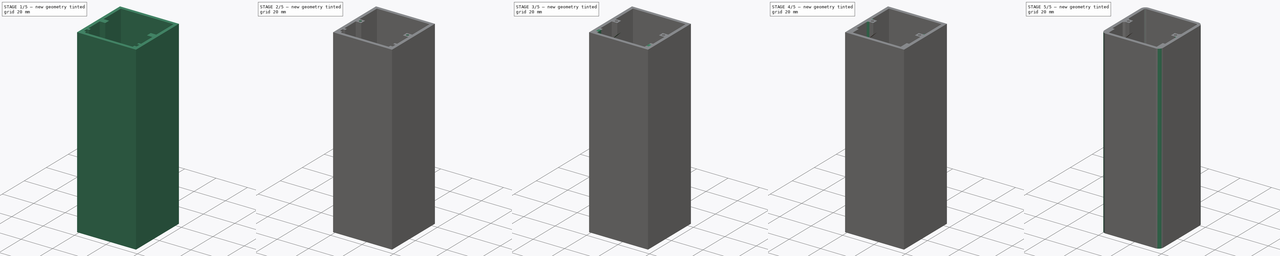
[diagram: build sequence overview — one tinted view per stage of 5, left to right]
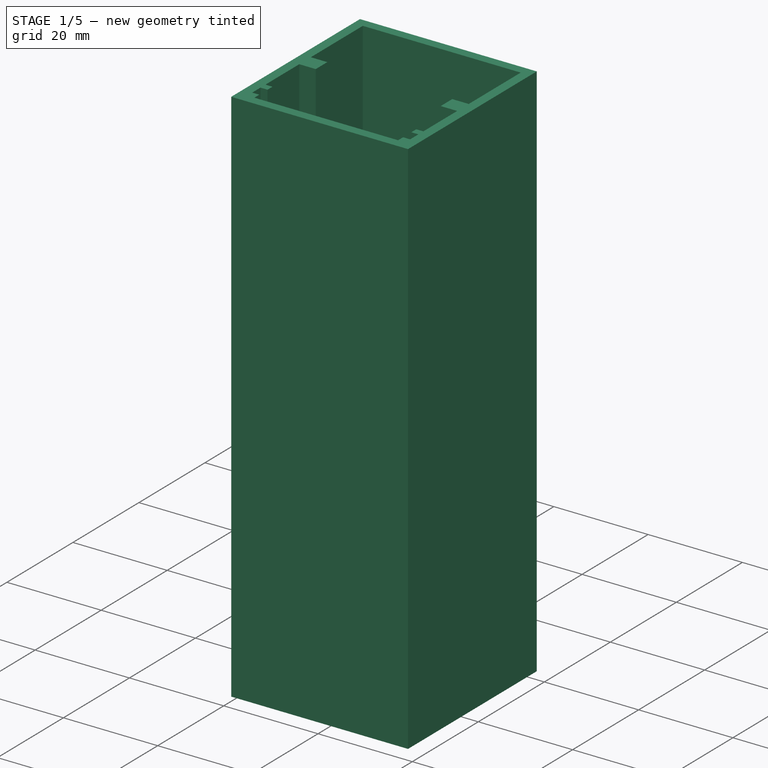
[diagram: stage 1 of 5 — iso view after this stage's code; geometry added in this stage tinted green]
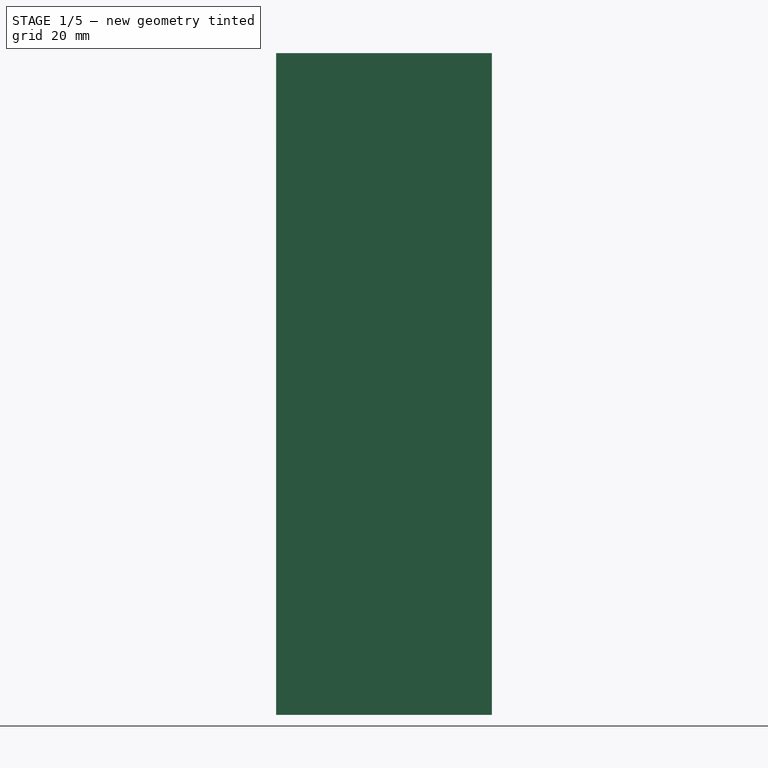
[diagram: stage 1 of 5 — front view after this stage's code; geometry added in this stage tinted green]
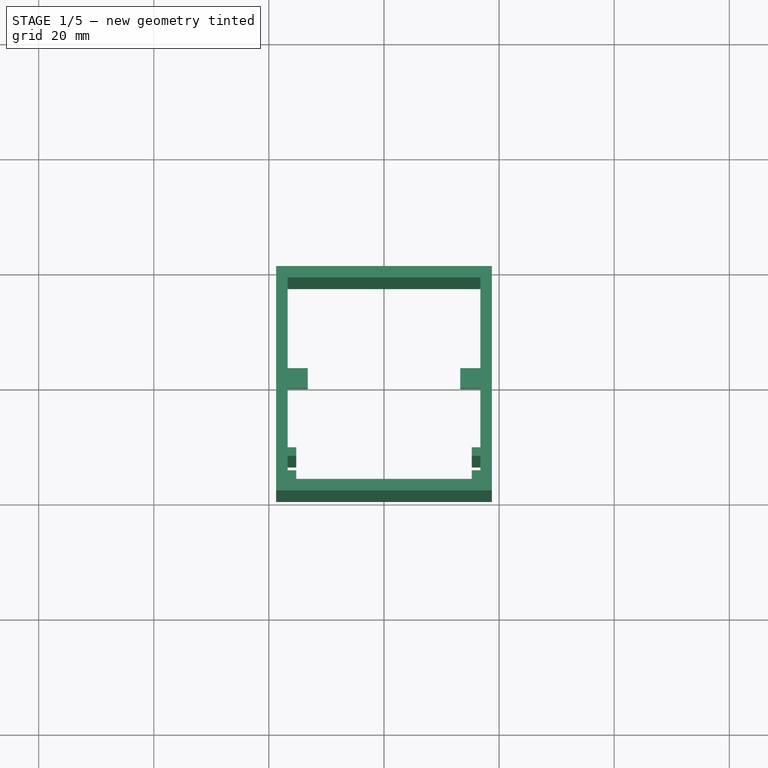
[diagram: stage 1 of 5 — top view after this stage's code; geometry added in this stage tinted green]
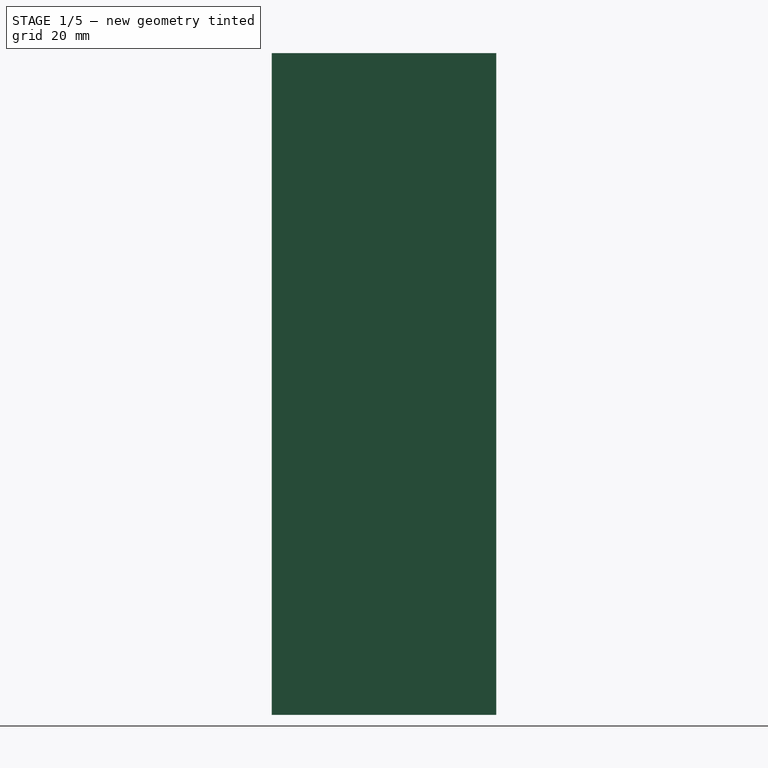
[diagram: stage 1 of 5 — right view after this stage's code; geometry added in this stage tinted green]
FCSTD DOCUMENT  (FreeCAD 0.20R29603 (Git))
Label: inline_box
License: All rights reserved
LicenseURL: http://en.wikipedia.org/wiki/All_rights_reserved
objects: Sketcher::SketchObject×8, PartDesign::Pad×5, PartDesign::Chamfer×5, PartDesign::Pocket×3, PartDesign::Fillet×2, PartDesign::Body×1
note: 39 computed .brp shape members not serialized (recipe doc carries the construction recipe); baked Part::Feature solids carry a one-line shape summary decoded from their .brp

FEATURE [Sketcher::SketchObject] Sketch
  FullyConstrained = true
  MapMode = 5
  Support = -> [XY_Plane]
  sketch-geometry (8):
    g0: LineSegment StartX=-16.75 StartY=17.5 StartZ=0 EndX=16.75 EndY=17.5 EndZ=0
    g1: LineSegment StartX=16.75 StartY=17.5 StartZ=0 EndX=16.75 EndY=-17.5 EndZ=0
    g2: LineSegment StartX=16.75 StartY=-17.5 StartZ=0 EndX=-16.75 EndY=-17.5 EndZ=0
    g3: LineSegment StartX=-16.75 StartY=-17.5 StartZ=0 EndX=-16.75 EndY=17.5 EndZ=0
    g4: LineSegment StartX=-18.75 StartY=-19.5 StartZ=0 EndX=18.75 EndY=-19.5 EndZ=0
    g5: LineSegment StartX=18.75 StartY=-19.5 StartZ=0 EndX=18.75 EndY=19.5 EndZ=0
    g6: LineSegment StartX=18.75 StartY=19.5 StartZ=0 EndX=-18.75 EndY=19.5 EndZ=0
    g7: LineSegment StartX=-18.75 StartY=19.5 StartZ=0 EndX=-18.75 EndY=-19.5 EndZ=0
  constraints (24):
    c: Coincident(g0,g1)
    c: Coincident(g1,g2)
    c: Coincident(g2,g3)
    c: Coincident(g3,g0)
    c: Horizontal(g0)
    c: Horizontal(g2)
    c: Vertical(g1)
    c: Vertical(g3)
    c: DistanceX(g0,g0) = 33.5
    c: DistanceY(g1,g1) = 35
    c: DistanceY(g-1,g0) = 17.5
    c: DistanceX(g0,g-1) = 16.75
    c: Coincident(g4,g5)
    c: Coincident(g5,g6)
    c: Coincident(g6,g7)
    c: Coincident(g7,g4)
    c: Horizontal(g4)
    c: Horizontal(g6)
    c: Vertical(g5)
    c: Vertical(g7)
    c: DistanceX(g6,g0) = 2
    c: DistanceY(g0,g6) = 2
    c: DistanceX(g1,g4) = 2
    c: DistanceY(g4,g1) = 2
FEATURE [PartDesign::Pad] Pad
  Direction = (0,0,1)
  Length = 115
  Length2 = 10
  Profile = -> Sketch
  ReferenceAxis = -> Sketch [N_Axis]
  Type = 0
FEATURE [Sketcher::SketchObject] Sketch001
  ExternalGeometry = -> [Pad]
  FullyConstrained = true
  MapMode = 5
  Placement = pos=(0,0,115) rot=(0,0,1;0rad)
  Support = -> [Pad]
  sketch-geometry (16):
    g0: LineSegment StartX=-16.75 StartY=-16 StartZ=0 EndX=-15.25 EndY=-16 EndZ=0
    g1: LineSegment StartX=-15.25 StartY=-16 StartZ=0 EndX=-15.25 EndY=-17.5 EndZ=0
    g2: LineSegment StartX=-15.25 StartY=-17.5 StartZ=0 EndX=-16.75 EndY=-17.5 EndZ=0
    g3: LineSegment StartX=-16.75 StartY=-17.5 StartZ=0 EndX=-16.75 EndY=-16 EndZ=0
    g4: LineSegment StartX=15.25 StartY=-16 StartZ=0 EndX=16.75 EndY=-16 EndZ=0
    g5: LineSegment StartX=16.75 StartY=-16 StartZ=0 EndX=16.75 EndY=-17.5 EndZ=0
    g6: LineSegment StartX=16.75 StartY=-17.5 StartZ=0 EndX=15.25 EndY=-17.5 EndZ=0
    g7: LineSegment StartX=15.25 StartY=-17.5 StartZ=0 EndX=15.25 EndY=-16 EndZ=0
    g8: LineSegment StartX=-16.75 StartY=-12 StartZ=0 EndX=-15.25 EndY=-12 EndZ=0
    g9: LineSegment StartX=-15.25 StartY=-12 StartZ=0 EndX=-15.25 EndY=-13.5 EndZ=0
    g10: LineSegment StartX=-15.25 StartY=-13.5 StartZ=0 EndX=-16.75 EndY=-13.5 EndZ=0
    g11: LineSegment StartX=-16.75 StartY=-13.5 StartZ=0 EndX=-16.75 EndY=-12 EndZ=0
    g12: LineSegment StartX=15.25 StartY=-12 StartZ=0 EndX=16.75 EndY=-12 EndZ=0
    g13: LineSegment StartX=16.75 StartY=-12 StartZ=0 EndX=16.75 EndY=-13.5 EndZ=0
    g14: LineSegment StartX=16.75 StartY=-13.5 StartZ=0 EndX=15.25 EndY=-13.5 EndZ=0
    g15: LineSegment StartX=15.25 StartY=-13.5 StartZ=0 EndX=15.25 EndY=-12 EndZ=0
  constraints (46):
    c: Coincident(g0,g1)
    c: Coincident(g1,g2)
    c: Coincident(g2,g3)
    c: Coincident(g3,g0)
    c: Horizontal(g0)
    c: Horizontal(g2)
    c: Vertical(g1)
    c: Vertical(g3)
    c: Coincident(g4,g5)
    c: Coincident(g5,g6)
    c: Coincident(g6,g7)
    c: Coincident(g7,g4)
    c: Horizontal(g4)
    c: Horizontal(g6)
    c: Vertical(g5)
    c: Vertical(g7)
    c: Coincident(g8,g9)
    c: Coincident(g9,g10)
    c: Coincident(g10,g11)
    c: Coincident(g11,g8)
    c: Horizontal(g8)
    c: Horizontal(g10)
    c: Vertical(g9)
    c: Vertical(g11)
    c: Coincident(g12,g13)
    c: Coincident(g13,g14)
    c: Coincident(g14,g15)
    c: Coincident(g15,g12)
    c: Horizontal(g12)
    c: Horizontal(g14)
    c: Vertical(g13)
    c: Vertical(g15)
    c: Coincident(g2,g-4)
    c: Coincident(g-3,g5)
    c: Vertical(g4,g13)
    c: Vertical(g10,g0)
    c: Equal(g2,g1)
    c: Equal(g1,g9)
    c: Equal(g9,g8)
    c: Equal(g8,g12)
    c: Equal(g12,g15)
    c: Equal(g15,g7)
    c: Equal(g7,g6)
    c: DistanceX(g2,g2) = 1.5
    c: Horizontal(g14,g9)
    c: DistanceY(g0,g9) = 2.5
FEATURE [PartDesign::Pad] Pad001
  BaseFeature = -> Pad
  Direction = (0,0,1)
  Length = 115
  Length2 = 10
  Profile = -> Sketch001
  ReferenceAxis = -> Sketch001 [N_Axis]
  Reversed = true
  Type = 0
FEATURE [Sketcher::SketchObject] Sketch002
  ExternalGeometry = -> [Pad001]
  FullyConstrained = true
  MapMode = 5
  Placement = pos=(0,0,115) rot=(0,0,1;0rad)
  Support = -> [Pad001]
  sketch-geometry (8):
    g0: LineSegment StartX=13.25 StartY=1.75 StartZ=0 EndX=16.75 EndY=1.75 EndZ=0
    g1: LineSegment StartX=16.75 StartY=1.75 StartZ=0 EndX=16.75 EndY=-1.75 EndZ=0
    g2: LineSegment StartX=16.75 StartY=-1.75 StartZ=0 EndX=13.25 EndY=-1.75 EndZ=0
    g3: LineSegment StartX=13.25 StartY=-1.75 StartZ=0 EndX=13.25 EndY=1.75 EndZ=0
    g4: LineSegment StartX=-16.75 StartY=1.75 StartZ=0 EndX=-13.25 EndY=1.75 EndZ=0
    g5: LineSegment StartX=-13.25 StartY=1.75 StartZ=0 EndX=-13.25 EndY=-1.75 EndZ=0
    g6: LineSegment StartX=-13.25 StartY=-1.75 StartZ=0 EndX=-16.75 EndY=-1.75 EndZ=0
    g7: LineSegment StartX=-16.75 StartY=-1.75 StartZ=0 EndX=-16.75 EndY=1.75 EndZ=0
  constraints (24):
    c: Coincident(g0,g1)
    c: Coincident(g1,g2)
    c: Coincident(g2,g3)
    c: Coincident(g3,g0)
    c: Horizontal(g0)
    c: Horizontal(g2)
    c: Vertical(g1)
    c: Vertical(g3)
    c: Coincident(g4,g5)
    c: Coincident(g5,g6)
    c: Coincident(g6,g7)
    c: Coincident(g7,g4)
    c: Horizontal(g4)
    c: Horizontal(g6)
    c: Vertical(g5)
    c: Vertical(g7)
    c: Equal(g0,g3)
    c: Equal(g3,g5)
    c: Equal(g5,g4)
    c: DistanceX(g0,g0) = 3.5
    c: Horizontal(g0,g4)
    c: DistanceY(g-1,g0) = 1.75
    c: DistanceX(g-4,g4) = 0
    c: DistanceX(g0,g-3) = 0
FEATURE [PartDesign::Pad] Pad002
  BaseFeature = -> Pad001
  Direction = (0,0,1)
  Length = 10
  Length2 = 10
  Profile = -> Sketch002
  ReferenceAxis = -> Sketch002 [N_Axis]
  Reversed = true
  Type = 0
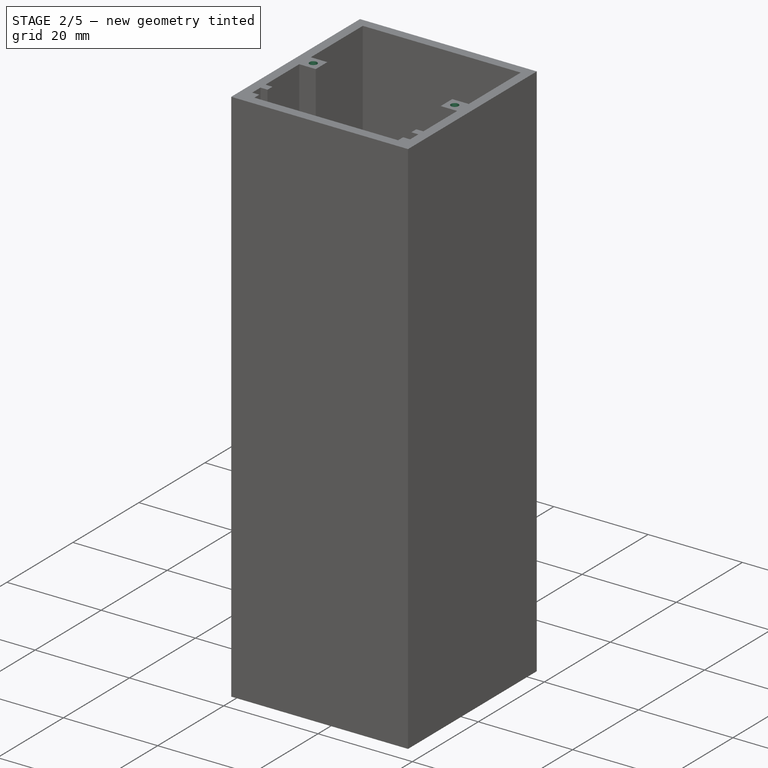
[diagram: stage 2 of 5 — iso view after this stage's code; geometry added in this stage tinted green]
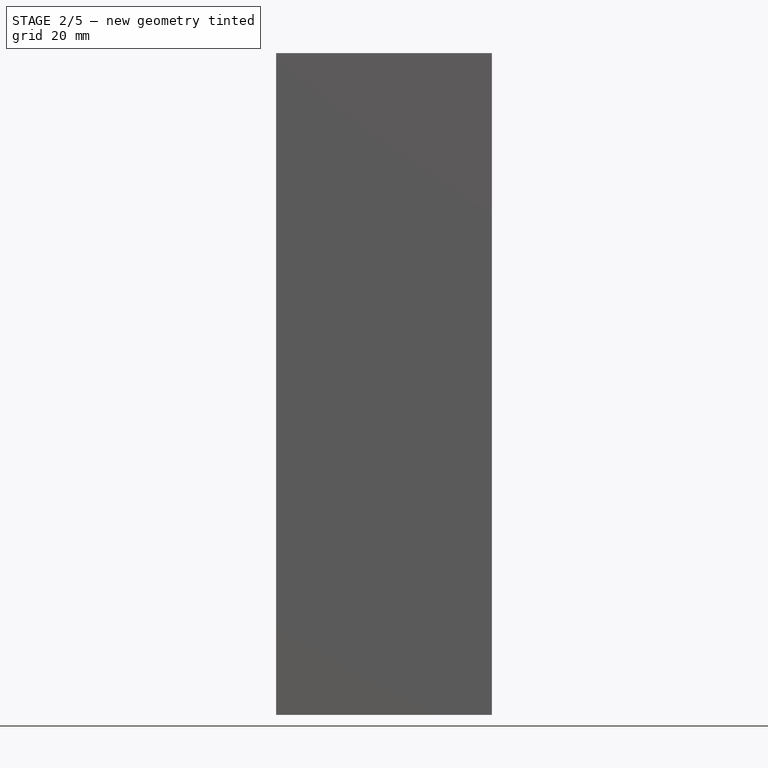
[diagram: stage 2 of 5 — front view after this stage's code; geometry added in this stage tinted green]
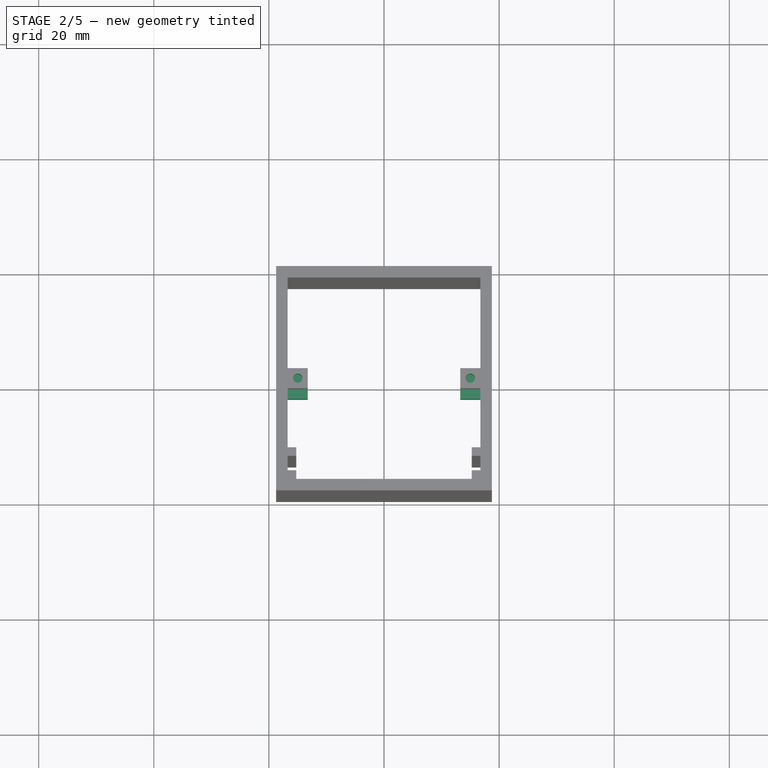
[diagram: stage 2 of 5 — top view after this stage's code; geometry added in this stage tinted green]
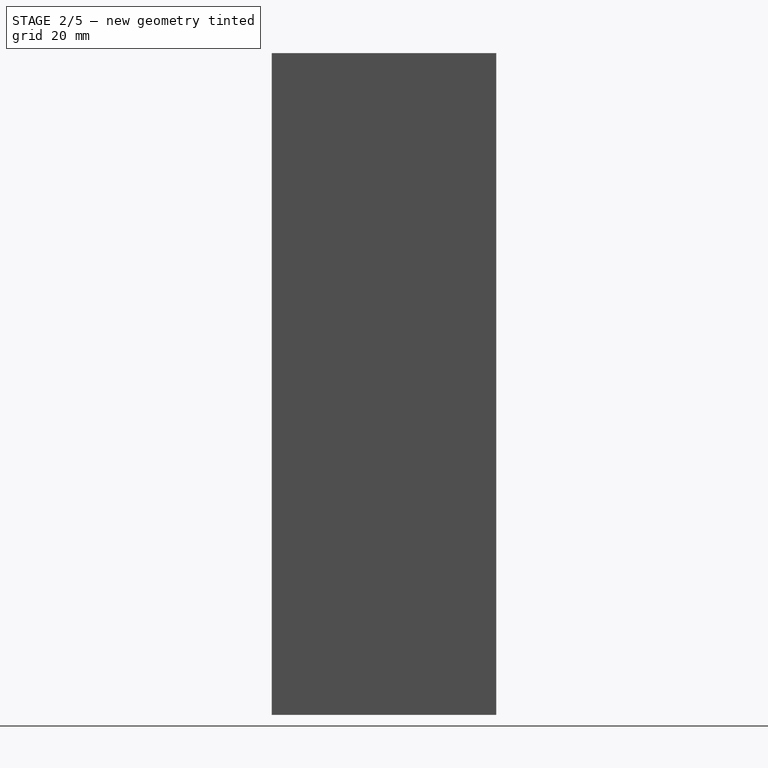
[diagram: stage 2 of 5 — right view after this stage's code; geometry added in this stage tinted green]
FEATURE [Sketcher::SketchObject] Sketch003
  FullyConstrained = true
  MapMode = 5
  Placement = pos=(0,0,115) rot=(0,0,1;0rad)
  Support = -> [Pad002]
  sketch-geometry (2):
    g0: Circle CenterX=-15 CenterY=0 CenterZ=0 NormalX=0 NormalY=0 NormalZ=1 AngleXU=0 Radius=0.8
    g1: Circle CenterX=15 CenterY=0 CenterZ=0 NormalX=0 NormalY=0 NormalZ=1 AngleXU=0 Radius=0.8
  constraints (6):
    c: PointOnObject(g0,g-1)
    c: PointOnObject(g1,g-1)
    c: DistanceX(g0,g1) = 30
    c: DistanceX(g0,g-1) = 15
    c: Equal(g1,g0)
    c: Diameter(g1) = 1.6
FEATURE [PartDesign::Pocket] Pocket
  BaseFeature = -> Pad002
  Direction = (0,0,-1)
  Length = 7
  Length2 = 5
  Profile = -> Sketch003
  ReferenceAxis = -> Sketch003 [N_Axis]
  Type = 0
FEATURE [Sketcher::SketchObject] Sketch004
  ExternalGeometry = -> [Pocket]
  FullyConstrained = true
  MapMode = 5
  Placement = pos=(0,0,0) rot=(1,0,0;3.14159rad)
  Support = -> [Pocket]
  sketch-geometry (8):
    g0: LineSegment StartX=-16.75 StartY=1.75 StartZ=0 EndX=-13.25 EndY=1.75 EndZ=0
    g1: LineSegment StartX=-13.25 StartY=1.75 StartZ=0 EndX=-13.25 EndY=-1.75 EndZ=0
    g2: LineSegment StartX=-13.25 StartY=-1.75 StartZ=0 EndX=-16.75 EndY=-1.75 EndZ=0
    g3: LineSegment StartX=-16.75 StartY=-1.75 StartZ=0 EndX=-16.75 EndY=1.75 EndZ=0
    g4: LineSegment StartX=16.75 StartY=1.75 StartZ=0 EndX=13.25 EndY=1.75 EndZ=0
    g5: LineSegment StartX=13.25 StartY=1.75 StartZ=0 EndX=13.25 EndY=-1.75 EndZ=0
    g6: LineSegment StartX=13.25 StartY=-1.75 StartZ=0 EndX=16.75 EndY=-1.75 EndZ=0
    g7: LineSegment StartX=16.75 StartY=-1.75 StartZ=0 EndX=16.75 EndY=1.75 EndZ=0
  constraints (22):
    c: Coincident(g0,g1)
    c: Coincident(g1,g2)
    c: Coincident(g2,g3)
    c: Coincident(g3,g0)
    c: Horizontal(g0)
    c: Horizontal(g2)
    c: Vertical(g1)
    c: Vertical(g3)
    c: Coincident(g4,g5)
    c: Coincident(g5,g6)
    c: Coincident(g6,g7)
    c: Coincident(g7,g4)
    c: Horizontal(g4)
    c: Horizontal(g6)
    c: Vertical(g5)
    c: Vertical(g7)
    c: Vertical(g0,g-8)
    c: Vertical(g4,g-6)
    c: Coincident(g0,g-4)
    c: Coincident(g4,g-3)
    c: DistanceY(g-5,g5) = 0
    c: DistanceY(g-7,g1) = 0
FEATURE [PartDesign::Pad] Pad003
  BaseFeature = -> Pocket
  Direction = (0,0,-1)
  Length = 10
  Length2 = 10
  Profile = -> Sketch004
  ReferenceAxis = -> Sketch004 [N_Axis]
  Reversed = true
  Type = 0
FEATURE [Sketcher::SketchObject] Sketch005
  FullyConstrained = true
  MapMode = 5
  Placement = pos=(0,0,0) rot=(1,0,0;3.14159rad)
  Support = -> [Pad003]
  sketch-geometry (2):
    g0: Circle CenterX=-15 CenterY=0 CenterZ=0 NormalX=0 NormalY=0 NormalZ=1 AngleXU=0 Radius=0.8
    g1: Circle CenterX=15 CenterY=0 CenterZ=0 NormalX=0 NormalY=0 NormalZ=1 AngleXU=0 Radius=0.8
  constraints (6):
    c: PointOnObject(g0,g-1)
    c: PointOnObject(g1,g-1)
    c: Equal(g1,g0)
    c: Diameter(g1) = 1.6
    c: DistanceX(g0,g1) = 30
    c: DistanceX(g0,g-1) = 15
FEATURE [PartDesign::Pocket] Pocket001
  BaseFeature = -> Pad003
  Direction = (0,0,1)
  Length = 7
  Length2 = 5
  Profile = -> Sketch005
  ReferenceAxis = -> Sketch005 [N_Axis]
  Type = 0
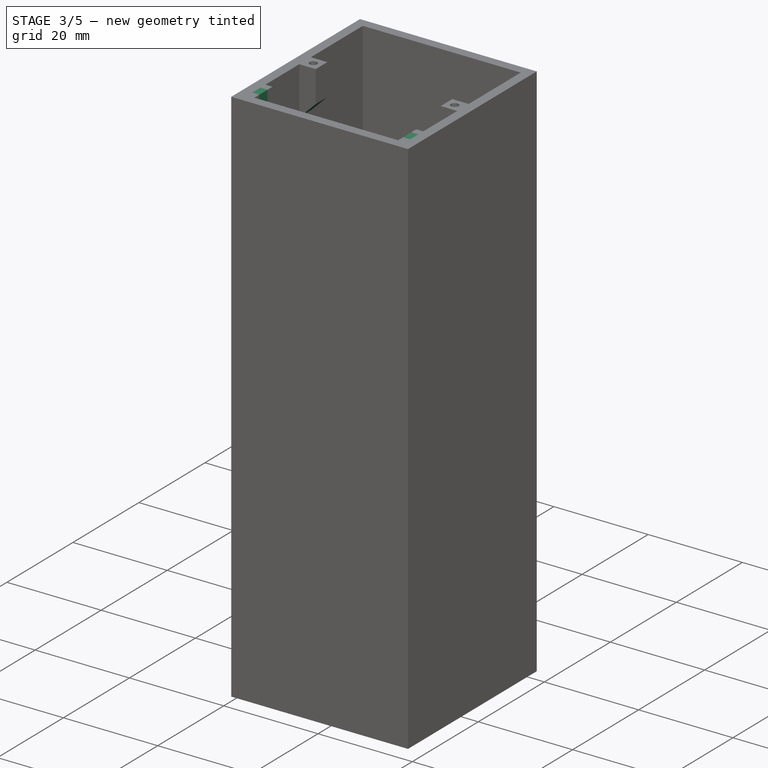
[diagram: stage 3 of 5 — iso view after this stage's code; geometry added in this stage tinted green]
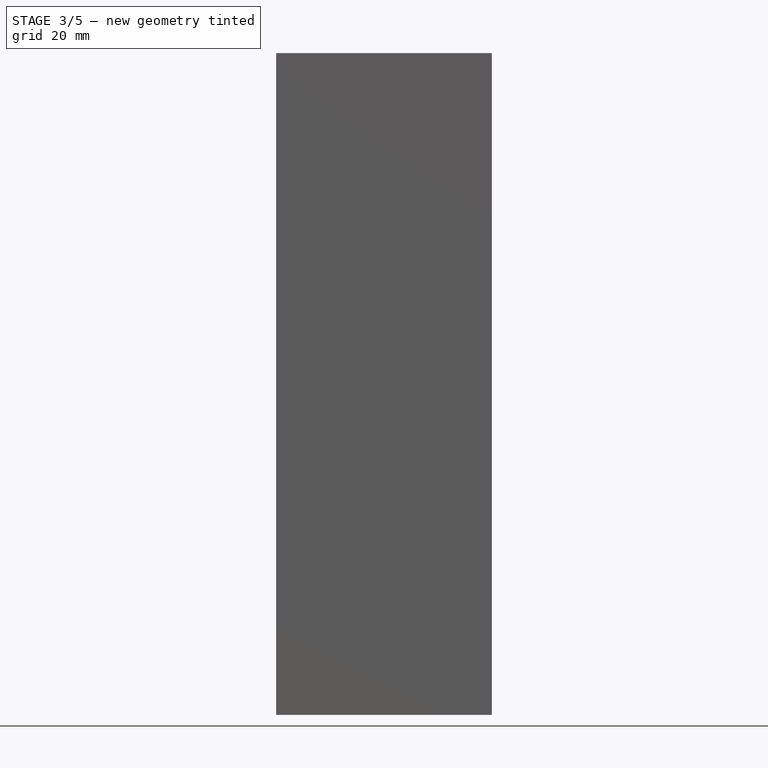
[diagram: stage 3 of 5 — front view after this stage's code; geometry added in this stage tinted green]
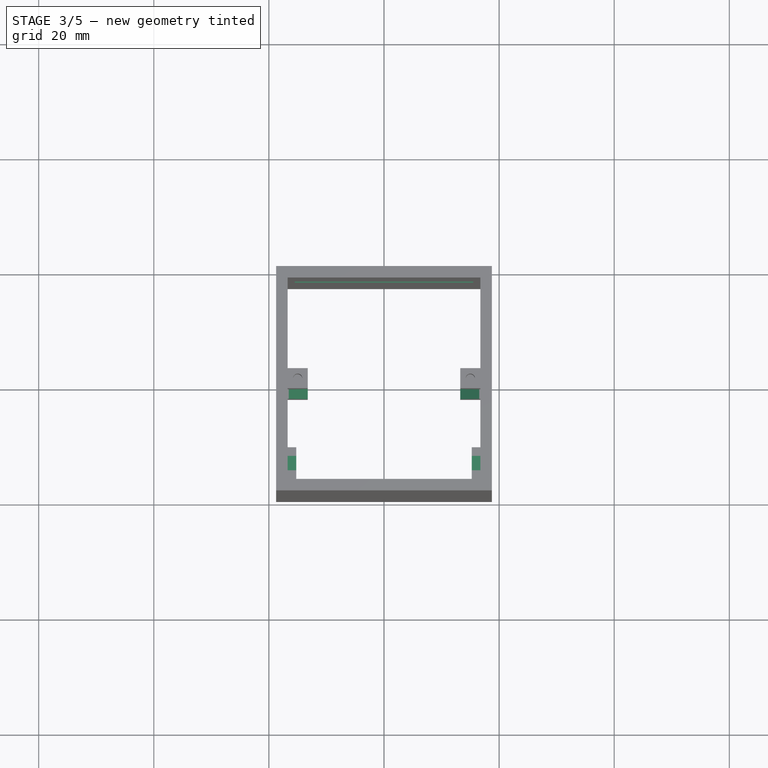
[diagram: stage 3 of 5 — top view after this stage's code; geometry added in this stage tinted green]
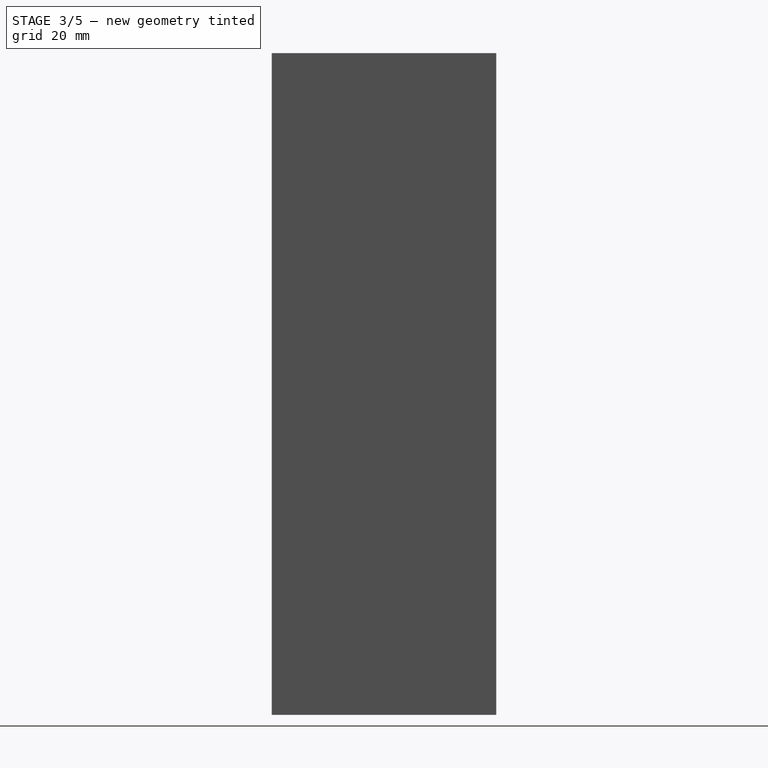
[diagram: stage 3 of 5 — right view after this stage's code; geometry added in this stage tinted green]
FEATURE [Sketcher::SketchObject] Sketch006
  ExternalGeometry = -> [Pocket001]
  FullyConstrained = true
  MapMode = 5
  Placement = pos=(0,0,115) rot=(0,0,1;0rad)
  Support = -> [Pocket001]
  sketch-geometry (8):
    g0: LineSegment StartX=-16.75 StartY=-13.5 StartZ=0 EndX=-15.25 EndY=-13.5 EndZ=0
    g1: LineSegment StartX=-15.25 StartY=-13.5 StartZ=0 EndX=-15.25 EndY=-16 EndZ=0
    g2: LineSegment StartX=-15.25 StartY=-16 StartZ=0 EndX=-16.75 EndY=-16 EndZ=0
    g3: LineSegment StartX=-16.75 StartY=-16 StartZ=0 EndX=-16.75 EndY=-13.5 EndZ=0
    g4: LineSegment StartX=15.25 StartY=-13.5 StartZ=0 EndX=16.75 EndY=-13.5 EndZ=0
    g5: LineSegment StartX=16.75 StartY=-13.5 StartZ=0 EndX=16.75 EndY=-16 EndZ=0
    g6: LineSegment StartX=16.75 StartY=-16 StartZ=0 EndX=15.25 EndY=-16 EndZ=0
    g7: LineSegment StartX=15.25 StartY=-16 StartZ=0 EndX=15.25 EndY=-13.5 EndZ=0
  constraints (22):
    c: Coincident(g0,g1)
    c: Coincident(g1,g2)
    c: Coincident(g2,g3)
    c: Coincident(g3,g0)
    c: Horizontal(g0)
    c: Horizontal(g2)
    c: Vertical(g1)
    c: Vertical(g3)
    c: Coincident(g4,g5)
    c: Coincident(g5,g6)
    c: Coincident(g6,g7)
    c: Coincident(g7,g4)
    c: Horizontal(g4)
    c: Horizontal(g6)
    c: Vertical(g5)
    c: Vertical(g7)
    c: Coincident(g4,g-6)
    c: Coincident(g0,g-3)
    c: DistanceY(g-4,g1) = 0
    c: DistanceY(g-7,g6) = 0
    c: DistanceX(g-5,g2) = 0
    c: DistanceX(g5,g-8) = 0
FEATURE [PartDesign::Pad] Pad004
  BaseFeature = -> Pocket001
  Direction = (0,0,1)
  Length = 20
  Length2 = 10
  Profile = -> Sketch006
  ReferenceAxis = -> Sketch006 [N_Axis]
  Reversed = true
  Type = 0
FEATURE [Sketcher::SketchObject] Sketch007
  ExternalGeometry = -> [Pad004]
  FullyConstrained = true
  MapMode = 5
  Placement = pos=(0,19.5,0) rot=(0,0.707107,0.707107;3.14159rad)
  Support = -> [Pad004]
  sketch-geometry (4):
    g0: LineSegment StartX=-15.5 StartY=74.5 StartZ=0 EndX=15.5 EndY=74.5 EndZ=0
    g1: LineSegment StartX=15.5 StartY=74.5 StartZ=0 EndX=15.5 EndY=64.5 EndZ=0
    g2: LineSegment StartX=15.5 StartY=64.5 StartZ=0 EndX=-15.5 EndY=64.5 EndZ=0
    g3: LineSegment StartX=-15.5 StartY=64.5 StartZ=0 EndX=-15.5 EndY=74.5 EndZ=0
  constraints (12):
    c: Coincident(g0,g1)
    c: Coincident(g1,g2)
    c: Coincident(g2,g3)
    c: Coincident(g3,g0)
    c: Horizontal(g0)
    c: Horizontal(g2)
    c: Vertical(g1)
    c: Vertical(g3)
    c: DistanceY(g0,g-3) = 40.5
    c: DistanceY(g3,g3) = 10
    c: DistanceX(g-3,g0) = 3.25
    c: DistanceX(g0,g-3) = 3.25
FEATURE [PartDesign::Pocket] Pocket002
  BaseFeature = -> Pad004
  Direction = (0,-1,2e-16)
  Length = 5
  Length2 = 5
  Profile = -> Sketch007
  ReferenceAxis = -> Sketch007 [N_Axis]
  Type = 0
FEATURE [PartDesign::Chamfer] Chamfer
  Angle = 45
  Base = -> Pocket002 [Edge122,Edge149,Edge128,Edge154]
  BaseFeature = -> Pocket002
  ChamferType = 0
  FlipDirection = false
  Size = 3.3
  Size2 = 1
  SupportTransform = false
  UseAllEdges = false
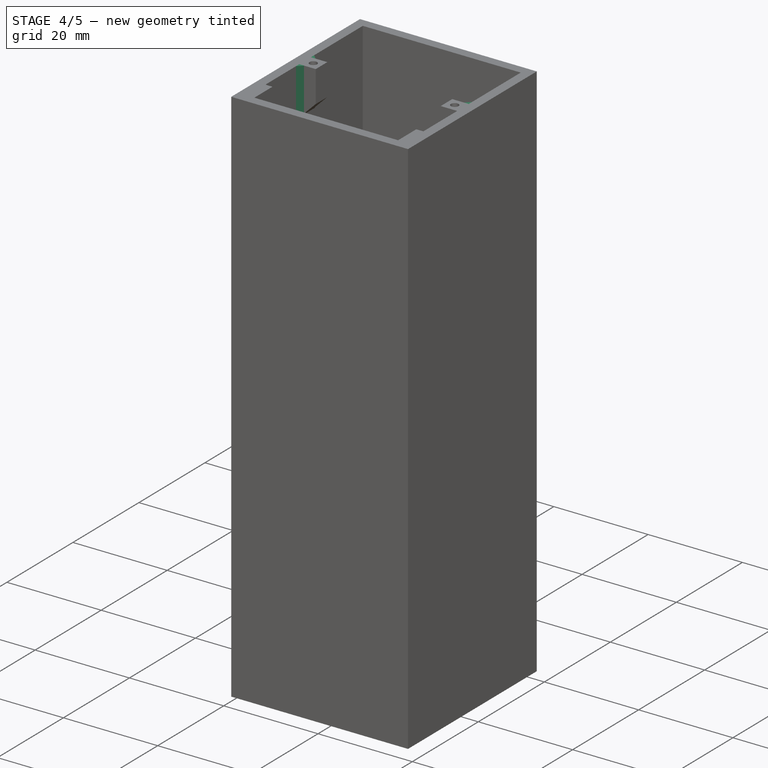
[diagram: stage 4 of 5 — iso view after this stage's code; geometry added in this stage tinted green]
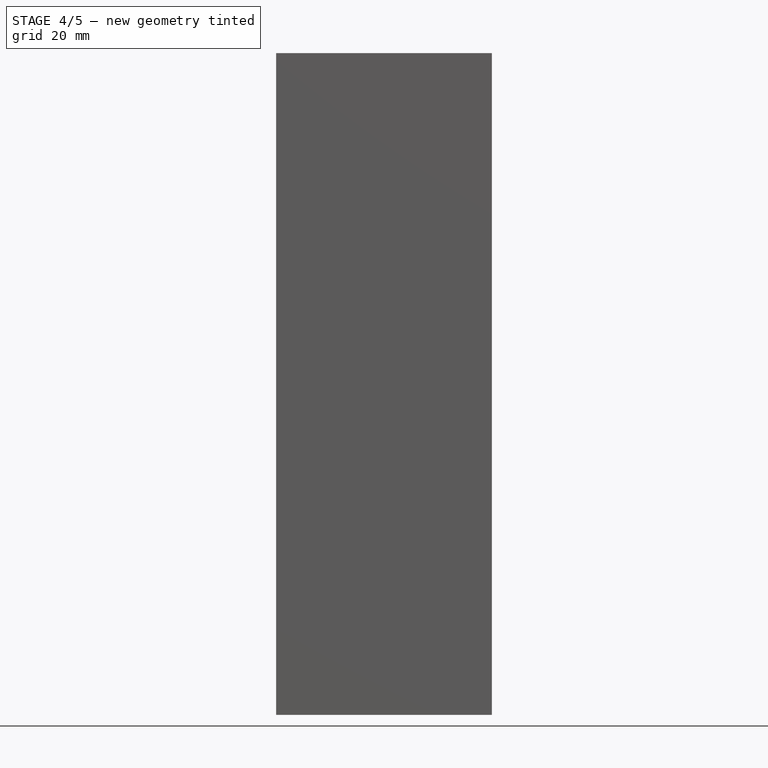
[diagram: stage 4 of 5 — front view after this stage's code; geometry added in this stage tinted green]
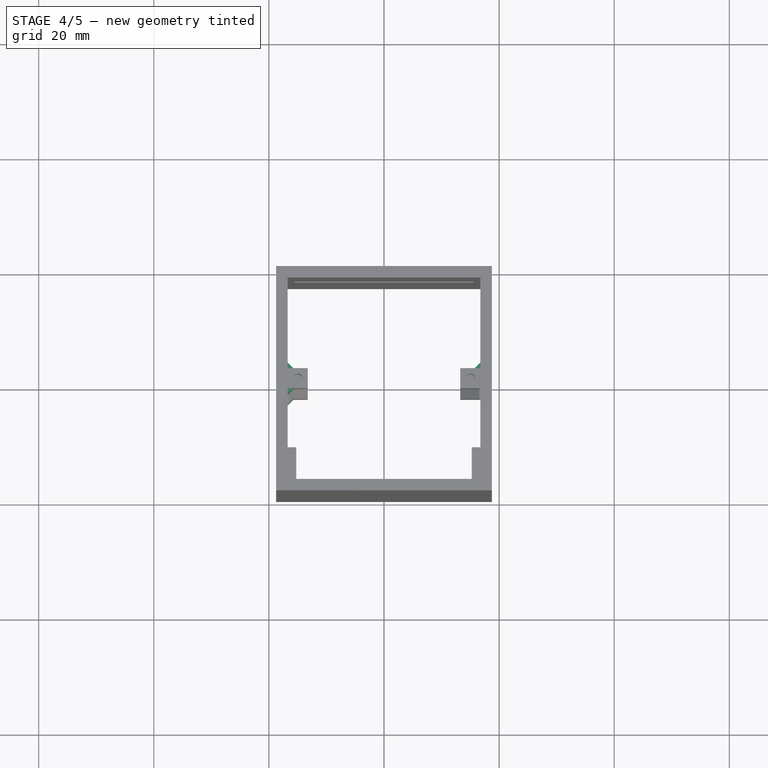
[diagram: stage 4 of 5 — top view after this stage's code; geometry added in this stage tinted green]
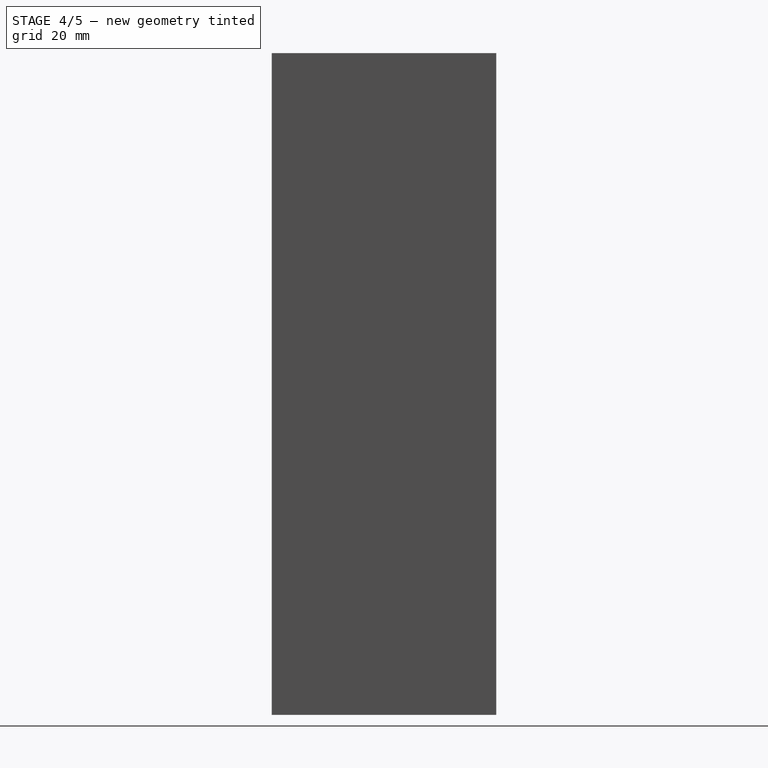
[diagram: stage 4 of 5 — right view after this stage's code; geometry added in this stage tinted green]
FEATURE [PartDesign::Chamfer] Chamfer001
  Angle = 45
  Base = -> Chamfer [Edge105,Edge110]
  BaseFeature = -> Chamfer
  ChamferType = 0
  FlipDirection = false
  Size = 1
  Size2 = 1
  SupportTransform = false
  UseAllEdges = false
FEATURE [PartDesign::Chamfer] Chamfer002
  Angle = 45
  Base = -> Chamfer001 [Edge26,Edge30]
  BaseFeature = -> Chamfer001
  ChamferType = 0
  FlipDirection = false
  Size = 1
  Size2 = 1
  SupportTransform = false
  UseAllEdges = false
FEATURE [PartDesign::Chamfer] Chamfer003
  Angle = 45
  Base = -> Chamfer002 [Edge52,Edge45]
  BaseFeature = -> Chamfer002
  ChamferType = 0
  FlipDirection = false
  Size = 1
  Size2 = 1
  SupportTransform = false
  UseAllEdges = false
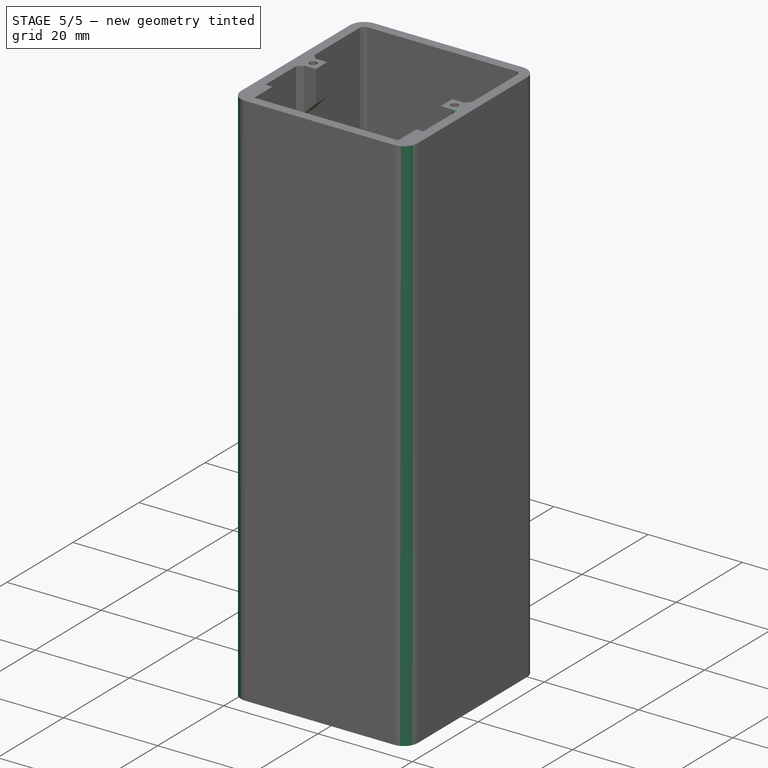
[diagram: stage 5 of 5 — iso view after this stage's code; geometry added in this stage tinted green]
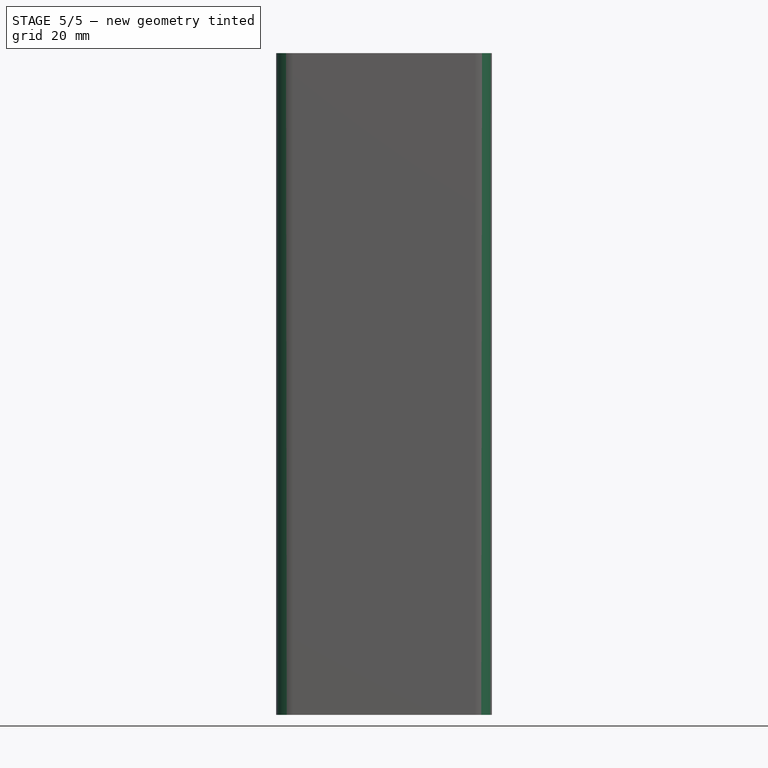
[diagram: stage 5 of 5 — front view after this stage's code; geometry added in this stage tinted green]
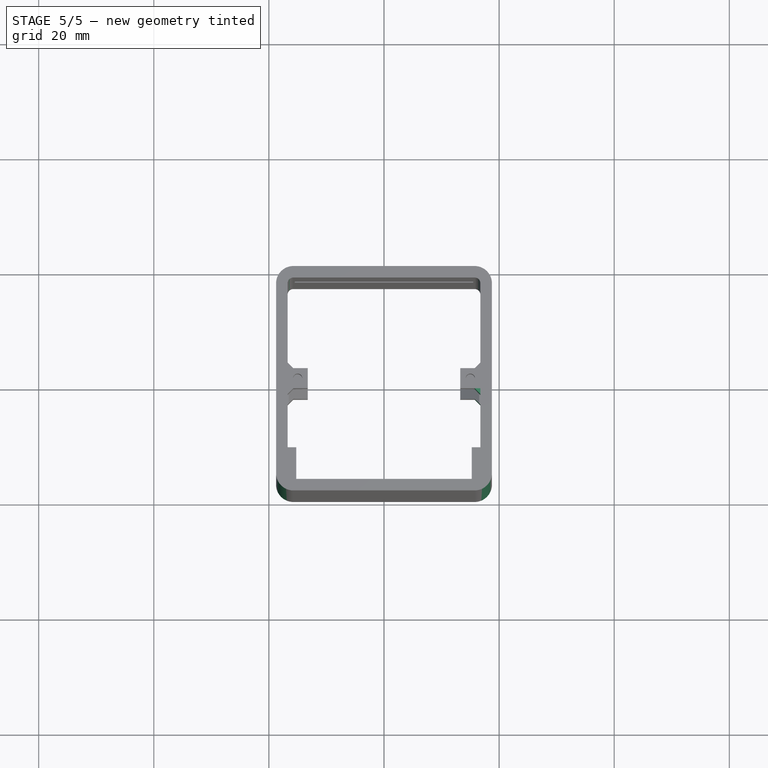
[diagram: stage 5 of 5 — top view after this stage's code; geometry added in this stage tinted green]
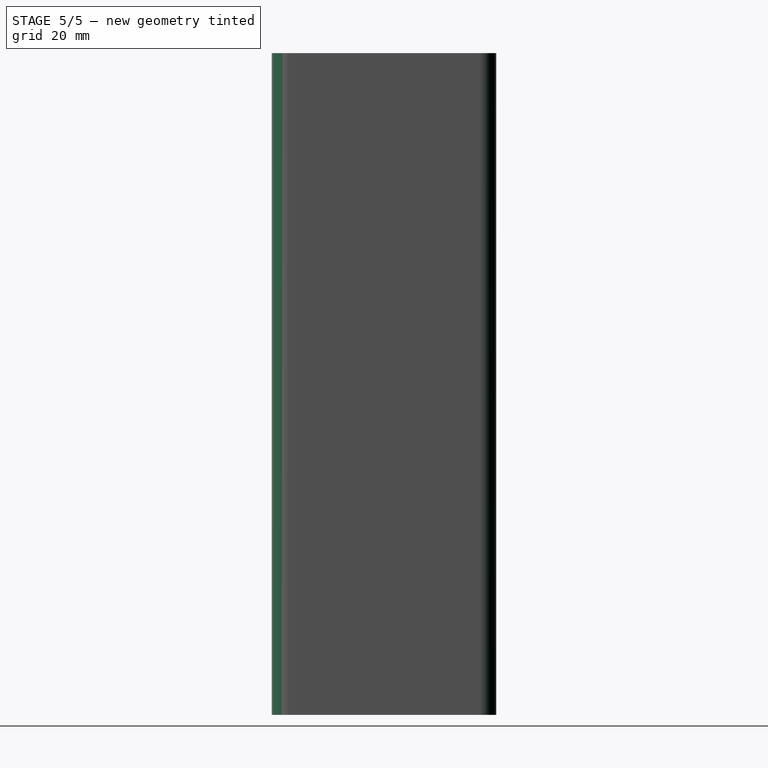
[diagram: stage 5 of 5 — right view after this stage's code; geometry added in this stage tinted green]
FEATURE [PartDesign::Chamfer] Chamfer004
  Angle = 45
  Base = -> Chamfer003 [Edge32,Edge28]
  BaseFeature = -> Chamfer003
  ChamferType = 0
  FlipDirection = false
  Size = 1
  Size2 = 1
  SupportTransform = false
  UseAllEdges = false
FEATURE [PartDesign::Fillet] Fillet
  Base = -> Chamfer004 [Edge29,Edge49]
  BaseFeature = -> Chamfer004
  Radius = 1
  SupportTransform = false
  UseAllEdges = false
FEATURE [PartDesign::Fillet] Fillet001
  Base = -> Fillet [Edge88,Edge87,Edge90,Edge93]
  BaseFeature = -> Fillet
  Radius = 3
  SupportTransform = false
  UseAllEdges = false
FEATURE [PartDesign::Body] Body
  Group = -> [Sketch,Pad,Sketch001,Pad001,Sketch002,Pad002,Sketch003,Pocket,Sketch004,Pad003,Sketch005,Pocket001,Sketch006,Pad004,Sketch007,Pocket002,Chamfer,Chamfer001,Chamfer002,Chamfer003,Chamfer004,Fillet,Fillet001]
  Origin = -> Origin
  Tip = -> Fillet001
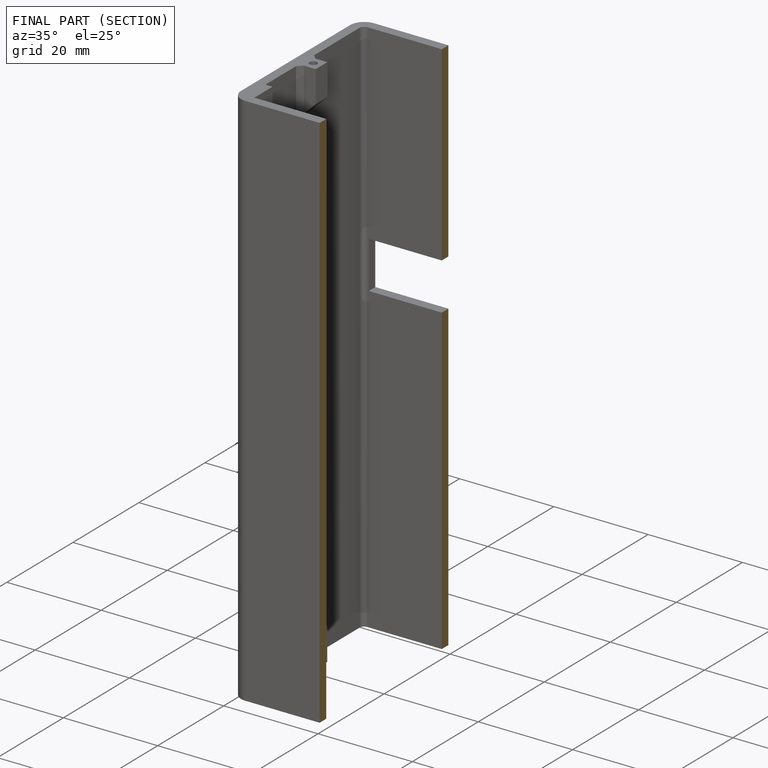
[diagram: finished part — half-section view (interior)]
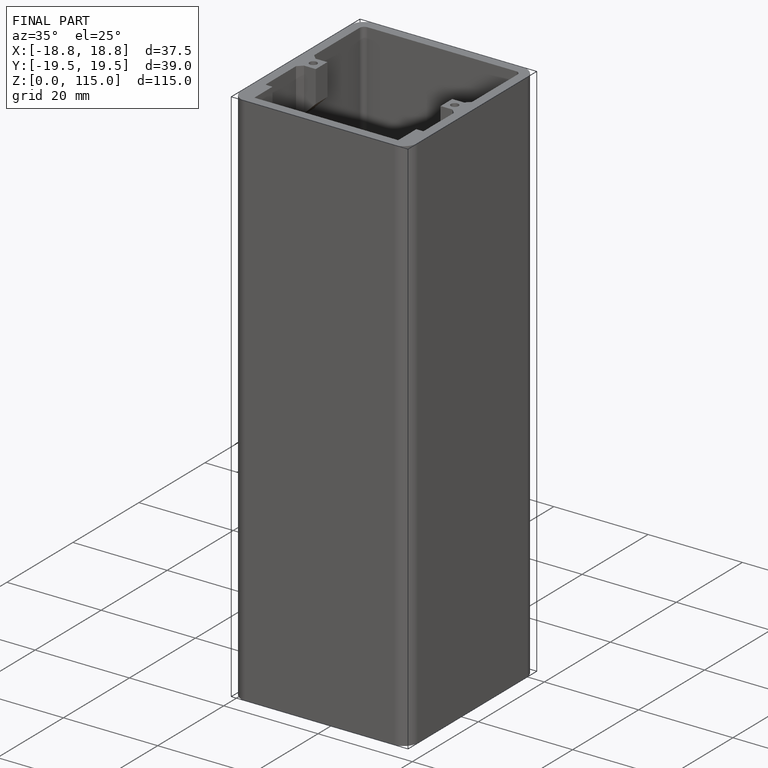
[diagram: finished part — iso view with bounding-box wireframe]
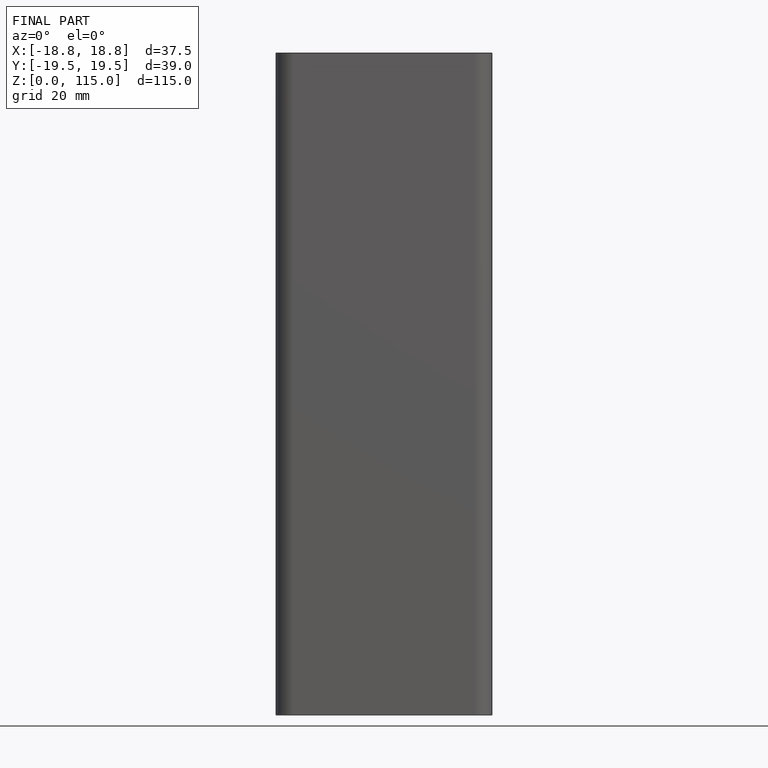
[diagram: finished part — front view with bounding-box wireframe]
